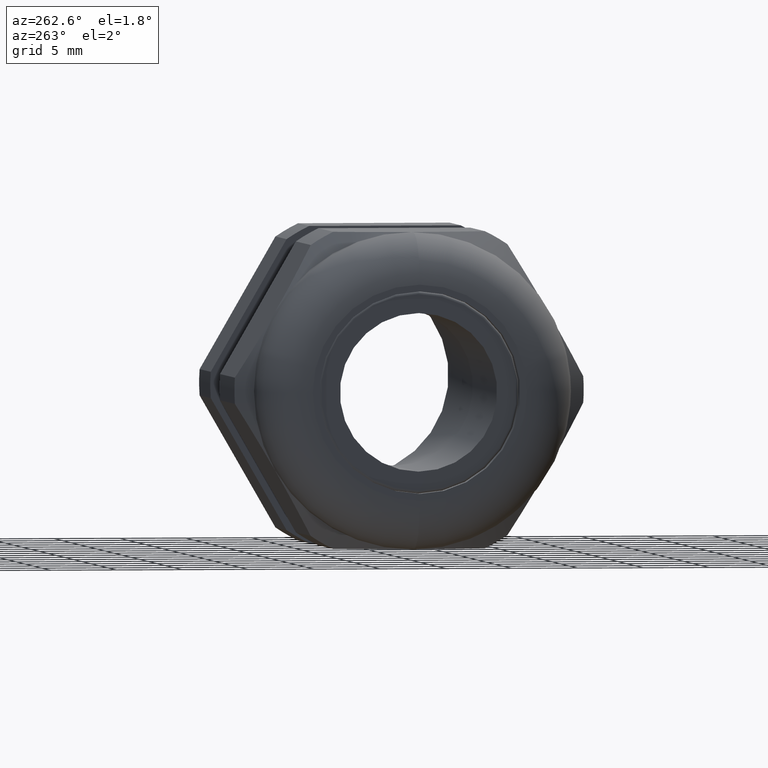
[diagram: clean part render]
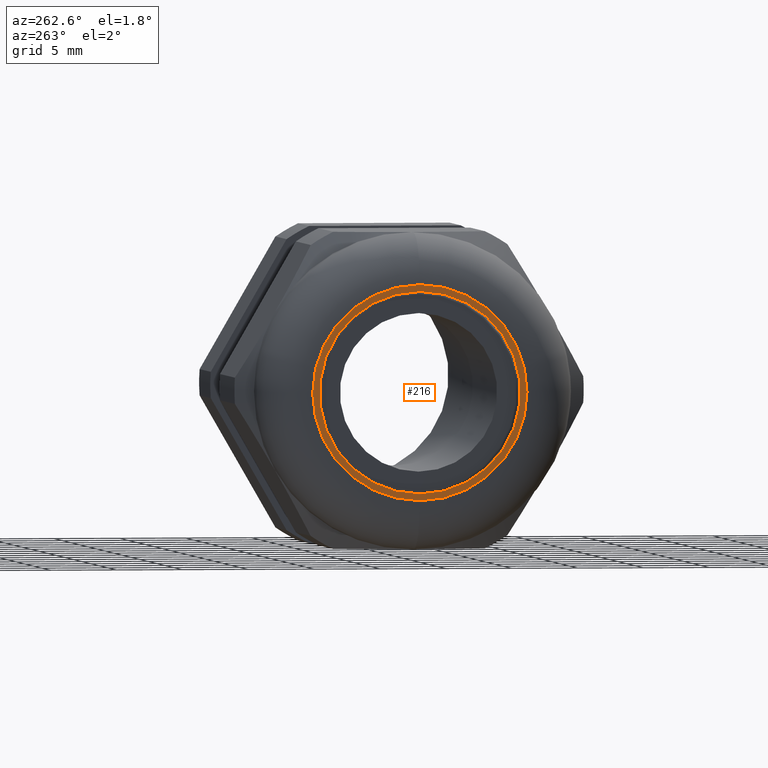
[diagram: same view with one face highlighted and labeled with its STEP entity id]
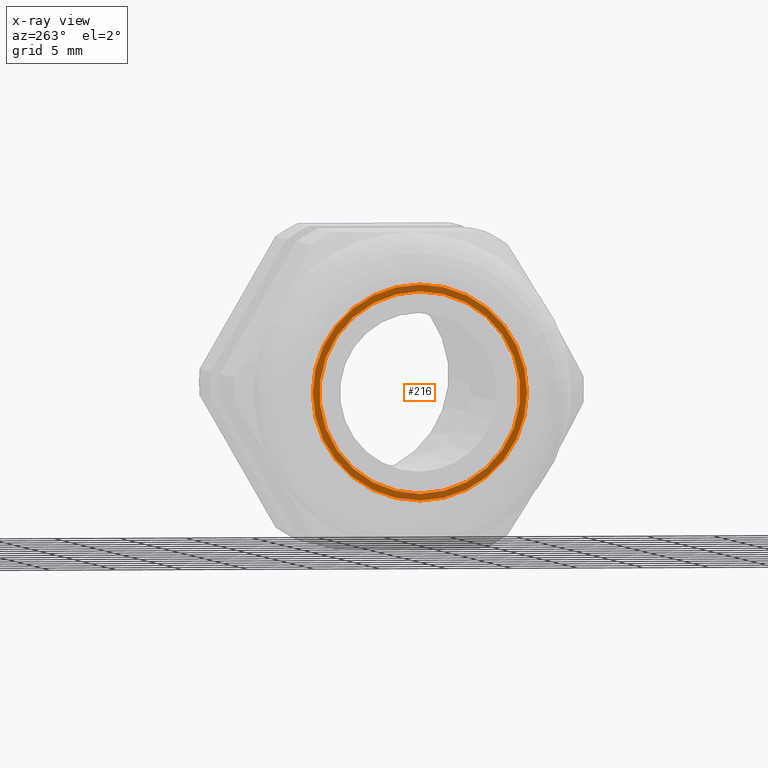
[diagram: x-ray of the same camera — body ghosted, the highlighted face saturated]
A machine part, auxiliary view. The second image highlights one B-rep face of the part: STEP entity #216.
The next image is the same camera in x-ray: the body ghosted, the highlighted face saturated — about 0% of this face is hidden behind the body in this view.
In plain terms, the highlighted planar face has unit normal (-1, 0, 0).
Its self-contained STEP definition (entity closure, byte-faithful):
#216 = ADVANCED_FACE ( 'NONE', ( #1213, #1212 ), #1211, .T. ) ;
#217 = EDGE_LOOP ( 'NONE', ( #218, #219 ) ) ;
#218 = ORIENTED_EDGE ( 'NONE', *, *, #3489, .T. ) ;
#219 = ORIENTED_EDGE ( 'NONE', *, *, #220, .T. ) ;
#220 = EDGE_CURVE ( 'NONE', #3471, #3484, #1206, .T. ) ;
#221 = EDGE_LOOP ( 'NONE', ( #222, #275 ) ) ;
#222 = ORIENTED_EDGE ( 'NONE', *, *, #274, .T. ) ;
#274 = EDGE_CURVE ( 'NONE', #4021, #4025, #1255, .T. ) ;
#275 = ORIENTED_EDGE ( 'NONE', *, *, #4026, .T. ) ;
#1202 = DIRECTION ( 'NONE',  ( 0.0000000000000000000, 0.0000000000000000000, 1.000000000000000000 ) ) ;
#1203 = DIRECTION ( 'NONE',  ( -1.000000000000000000, 0.0000000000000000000, 0.0000000000000000000 ) ) ;
#1204 = CARTESIAN_POINT ( 'NONE',  ( -1.369999999999999900, 0.0000000000000000000, 0.0000000000000000000 ) ) ;
#1205 = AXIS2_PLACEMENT_3D ( 'NONE', #1204, #1203, #1202 ) ;
#1206 = CIRCLE ( 'NONE', #1205, 0.3200000000000000100 ) ;
#1207 = DIRECTION ( 'NONE',  ( 0.0000000000000000000, 0.0000000000000000000, 1.000000000000000000 ) ) ;
#1208 = DIRECTION ( 'NONE',  ( -1.000000000000000000, 0.0000000000000000000, 0.0000000000000000000 ) ) ;
#1209 = CARTESIAN_POINT ( 'NONE',  ( -1.369999999999999900, 0.4699999999999999700, 0.0000000000000000000 ) ) ;
#1210 = AXIS2_PLACEMENT_3D ( 'NONE', #1209, #1208, #1207 ) ;
#1211 = PLANE ( 'NONE',  #1210 ) ;
#1212 = FACE_BOUND ( 'NONE', #221, .T. ) ;
#1213 = FACE_OUTER_BOUND ( 'NONE', #217, .T. ) ;
#1251 = DIRECTION ( 'NONE',  ( 0.0000000000000000000, 0.0000000000000000000, -1.000000000000000000 ) ) ;
#1252 = DIRECTION ( 'NONE',  ( 1.000000000000000000, 0.0000000000000000000, 0.0000000000000000000 ) ) ;
#1253 = CARTESIAN_POINT ( 'NONE',  ( -1.369999999999999900, 0.0000000000000000000, 0.0000000000000000000 ) ) ;
#1254 = AXIS2_PLACEMENT_3D ( 'NONE', #1253, #1252, #1251 ) ;
#1255 = CIRCLE ( 'NONE', #1254, 0.3000000000000000400 ) ;
#2094 = CARTESIAN_POINT ( 'NONE',  ( -1.369999999999999900, 4.837354856632045600E-017, -0.3200000000000000100 ) ) ;
#2123 = DIRECTION ( 'NONE',  ( 0.0000000000000000000, 0.0000000000000000000, 1.000000000000000000 ) ) ;
#2124 = DIRECTION ( 'NONE',  ( -1.000000000000000000, 0.0000000000000000000, 0.0000000000000000000 ) ) ;
#2125 = CARTESIAN_POINT ( 'NONE',  ( -1.369999999999999900, 0.0000000000000000000, 0.0000000000000000000 ) ) ;
#2126 = AXIS2_PLACEMENT_3D ( 'NONE', #2125, #2124, #2123 ) ;
#2127 = CIRCLE ( 'NONE', #2126, 0.3200000000000000100 ) ;
#2140 = CARTESIAN_POINT ( 'NONE',  ( -1.369999999999999900, 0.0000000000000000000, 0.3200000000000000100 ) ) ;
#3126 = CARTESIAN_POINT ( 'NONE',  ( -1.369999999999999900, 0.0000000000000000000, -0.3000000000000000400 ) ) ;
#3179 = DIRECTION ( 'NONE',  ( 0.0000000000000000000, 0.0000000000000000000, -1.000000000000000000 ) ) ;
#3180 = DIRECTION ( 'NONE',  ( 1.000000000000000000, 0.0000000000000000000, 0.0000000000000000000 ) ) ;
#3181 = CARTESIAN_POINT ( 'NONE',  ( -1.369999999999999900, 0.0000000000000000000, 0.0000000000000000000 ) ) ;
#3182 = AXIS2_PLACEMENT_3D ( 'NONE', #3181, #3180, #3179 ) ;
#3183 = CIRCLE ( 'NONE', #3182, 0.3000000000000000400 ) ;
#3184 = CARTESIAN_POINT ( 'NONE',  ( -1.369999999999999900, 3.673940397442060700E-017, 0.3000000000000000400 ) ) ;
#3471 = VERTEX_POINT ( 'NONE', #2094 ) ;
#3484 = VERTEX_POINT ( 'NONE', #2140 ) ;
#3489 = EDGE_CURVE ( 'NONE', #3484, #3471, #2127, .T. ) ;
#4021 = VERTEX_POINT ( 'NONE', #3126 ) ;
#4025 = VERTEX_POINT ( 'NONE', #3184 ) ;
#4026 = EDGE_CURVE ( 'NONE', #4025, #4021, #3183, .T. ) ;